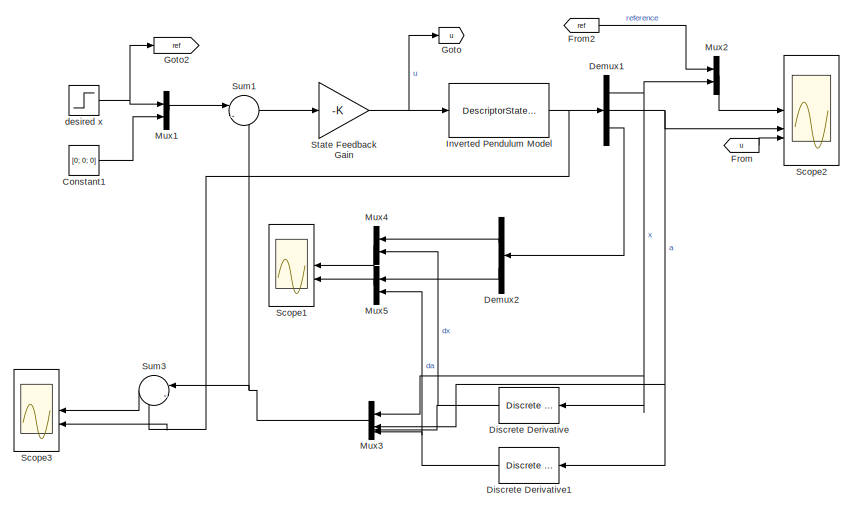
[diagram: root canvas - part 1/4, top left region]
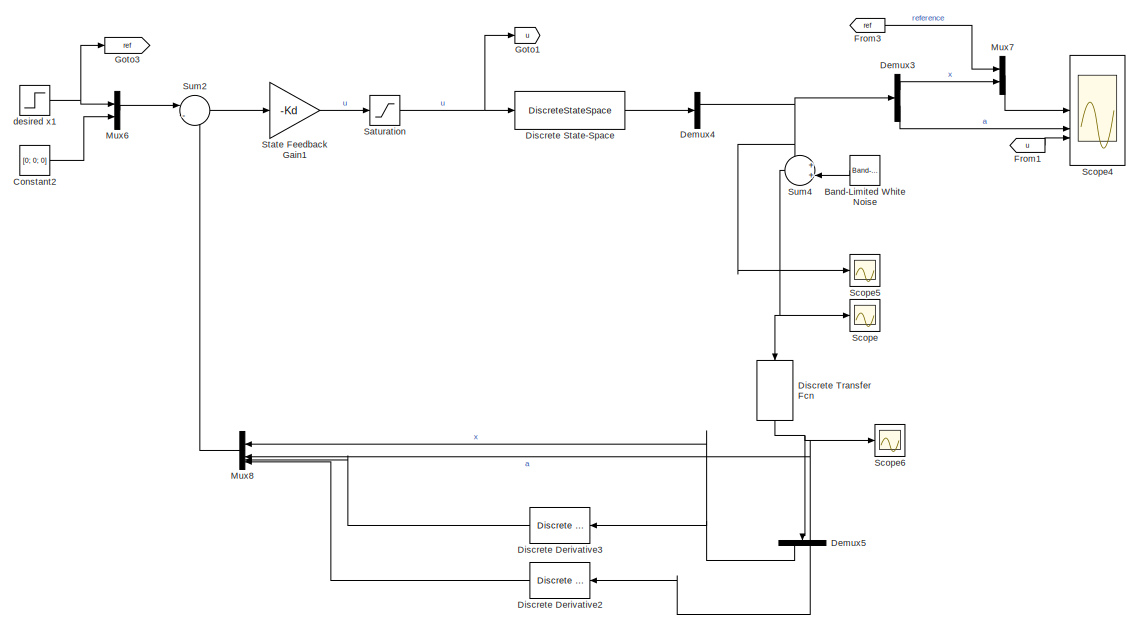
[diagram: root canvas - part 2/4, top center region]
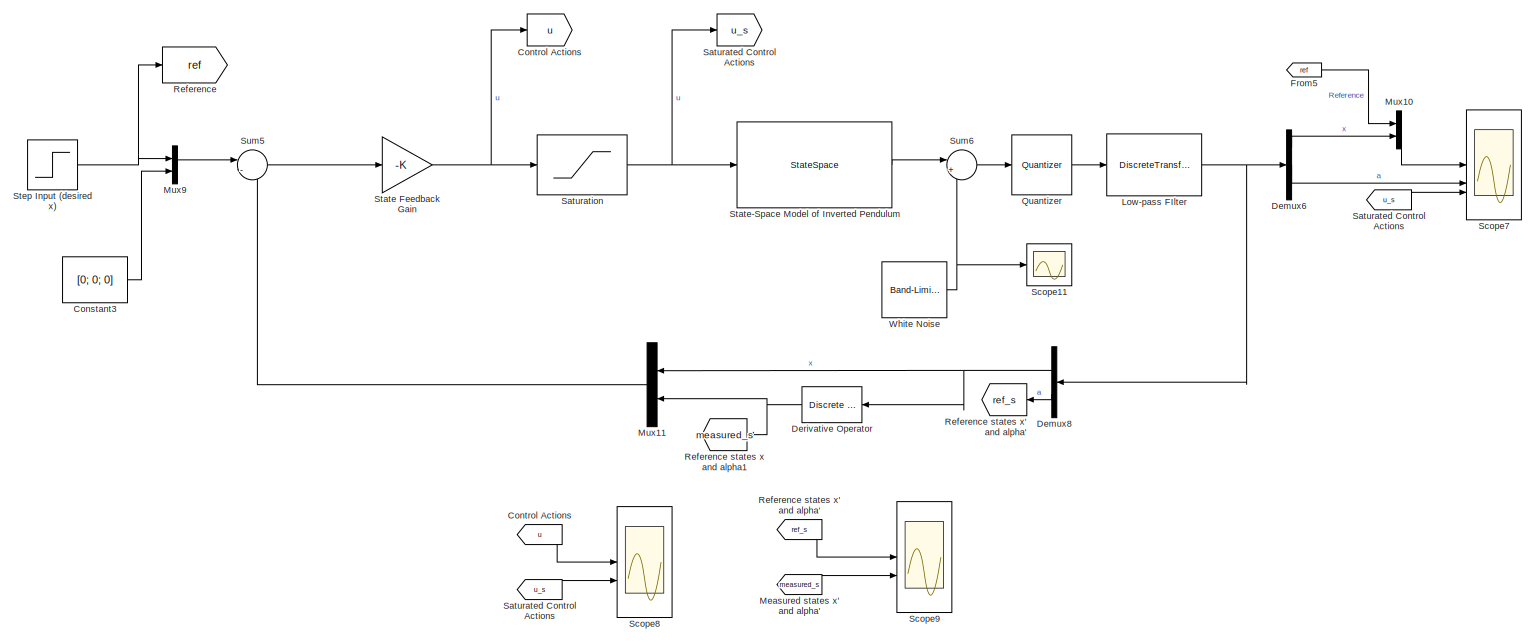
[diagram: root canvas - part 3/4, bottom left region]
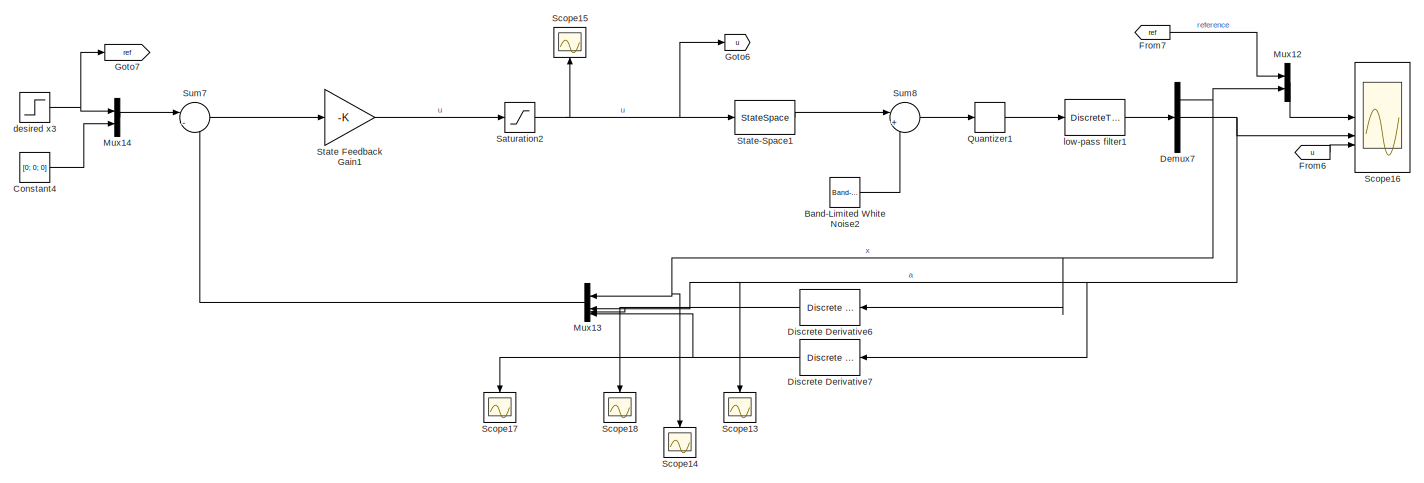
[diagram: root canvas - part 4/4, bottom right region]
MODEL slx_7806a24191a1
KIND model
CONFIG AbsTol = auto
CONFIG EnableMultiTasking = off
CONFIG FixedStep = auto
CONFIG MaxStep = auto
CONFIG MinStep = auto
CONFIG RelTol = 1e-3
CONFIG SampleTimeConstraint = Unconstrained
CONFIG SolverName = VariableStepAuto
CONFIG StartTime = 0.0
CONFIG StopTime = 10
BLOCK [Reference] Band-Limited White Noise  REF=simulink/Sources/Band-Limited
White Noise
  Commented = on
  SourceBlock = simulink/Sources/Band-Limited\nWhite Noise
  SourceType = Band-Limited White Noise.
BLOCK [Reference] Band-Limited White Noise2  REF=simulink/Sources/Band-Limited
White Noise
  Commented = on
  SourceBlock = simulink/Sources/Band-Limited\nWhite Noise
  SourceType = Band-Limited White Noise.
BLOCK [Constant] Constant1
  Commented = on
  Value = [0; 0; 0]
BLOCK [Constant] Constant2
  Commented = on
  Value = [0; 0; 0]
BLOCK [Constant] Constant3
  SampleTime = Ts
  Value = [0; 0; 0]
BLOCK [Constant] Constant4
  Commented = on
  SampleTime = Ts
  Value = [0; 0; 0]
BLOCK [Goto] Control  Actions
  GotoTag = u
BLOCK [From] Control Actions    
  GotoTag = u
BLOCK [Demux] Demux1
  Commented = on
  Outputs = [1 1 2]
BLOCK [Demux] Demux2
  Commented = on
  Outputs = [1 1]
BLOCK [Demux] Demux3
  Commented = on
  Outputs = [1 1]
BLOCK [Demux] Demux4
  Commented = on
  Outputs = [2 2]
BLOCK [Demux] Demux5
  Commented = on
  NameLocation = left
  Outputs = [1 1]
BLOCK [Demux] Demux6
  Outputs = [1 1 2]
BLOCK [Demux] Demux7
  Commented = on
  Outputs = [1 1 2]
BLOCK [Demux] Demux8
  Outputs = [2  -1]
BLOCK [Reference] Derivative Operator  REF=simulink/Discrete/Discrete Derivative
  SourceBlock = simulink/Discrete/Discrete Derivative
  SourceType = Discrete Derivative
BLOCK [Reference] Discrete Derivative  REF=simulink/Discrete/Discrete Derivative
  Commented = on
  SourceBlock = simulink/Discrete/Discrete Derivative
  SourceType = Discrete Derivative
BLOCK [Reference] Discrete Derivative1  REF=simulink/Discrete/Discrete Derivative
  Commented = on
  SourceBlock = simulink/Discrete/Discrete Derivative
  SourceType = Discrete Derivative
BLOCK [Reference] Discrete Derivative2  REF=simulink/Discrete/Discrete Derivative
  Commented = on
  SourceBlock = simulink/Discrete/Discrete Derivative
  SourceType = Discrete Derivative
BLOCK [Reference] Discrete Derivative3  REF=simulink/Discrete/Discrete Derivative
  Commented = on
  SourceBlock = simulink/Discrete/Discrete Derivative
  SourceType = Discrete Derivative
BLOCK [Reference] Discrete Derivative6  REF=simulink/Discrete/Discrete Derivative
  Commented = on
  SourceBlock = simulink/Discrete/Discrete Derivative
  SourceType = Discrete Derivative
BLOCK [Reference] Discrete Derivative7  REF=simulink/Discrete/Discrete Derivative
  Commented = on
  SourceBlock = simulink/Discrete/Discrete Derivative
  SourceType = Discrete Derivative
BLOCK [DiscreteStateSpace] Discrete State-Space
  A = Ad
  B = Bd
  C = Cd
  Commented = on
  D = Dd
  SampleTime = Ts
BLOCK [DiscreteTransferFcn] Discrete Transfer Fcn
  Commented = on
  Denominator = [1+wc*Ts, -1]
  InputPortMap = u0
  NameLocation = left
  Numerator = [wc*Ts]
BLOCK [From] From
  Commented = on
  GotoTag = u
BLOCK [From] From1
  Commented = on
  GotoTag = u
BLOCK [From] From2
  Commented = on
  GotoTag = ref
BLOCK [From] From3
  Commented = on
  GotoTag = ref
BLOCK [From] From5
  GotoTag = ref
BLOCK [From] From6
  Commented = on
  GotoTag = u
BLOCK [From] From7
  Commented = on
  GotoTag = ref
BLOCK [Goto] Goto
  Commented = on
  GotoTag = u
BLOCK [Goto] Goto1
  Commented = on
  GotoTag = u
BLOCK [Goto] Goto2
  Commented = on
  GotoTag = ref
BLOCK [Goto] Goto3
  Commented = on
  GotoTag = ref
BLOCK [Goto] Goto6
  Commented = on
  GotoTag = u
BLOCK [Goto] Goto7
  Commented = on
  GotoTag = ref
BLOCK [DescriptorStateSpace] Inverted Pendulum Model
  A = A
  B = B
  C = Cc
  Commented = on
  D = Dc
  E = eye(4)
BLOCK [DiscreteTransferFcn] Low-pass FIlter  
  Denominator = [1+wc*Ts, -1]
  InputPortMap = u0
  Numerator = [wc*Ts, 0]
BLOCK [From] Measured states x' and alpha' 
  GotoTag = measured_s
BLOCK [Mux] Mux1
  Commented = on
  DisplayOption = bar
  Inputs = 2
BLOCK [Mux] Mux10
  DisplayOption = bar
  Inputs = 2
BLOCK [Mux] Mux11
  DisplayOption = bar
  Inputs = 2
BLOCK [Mux] Mux12
  Commented = on
  DisplayOption = bar
  Inputs = 2
BLOCK [Mux] Mux13
  Commented = on
  DisplayOption = bar
BLOCK [Mux] Mux14
  Commented = on
  DisplayOption = bar
  Inputs = 2
BLOCK [Mux] Mux2
  Commented = on
  DisplayOption = bar
  Inputs = 2
BLOCK [Mux] Mux3
  Commented = on
  DisplayOption = bar
BLOCK [Mux] Mux4
  Commented = on
  DisplayOption = bar
  Inputs = 2
BLOCK [Mux] Mux5
  Commented = on
  DisplayOption = bar
  Inputs = 2
BLOCK [Mux] Mux6
  Commented = on
  DisplayOption = bar
  Inputs = 2
BLOCK [Mux] Mux7
  Commented = on
  DisplayOption = bar
  Inputs = 2
BLOCK [Mux] Mux8
  Commented = on
  DisplayOption = bar
BLOCK [Mux] Mux9
  DisplayOption = bar
  Inputs = 2
BLOCK [Quantizer] Quantizer 
  QuantizationInterval = 20/(2^16)
BLOCK [Quantizer] Quantizer1
  Commented = on
  QuantizationInterval = 20/(2^16)
BLOCK [Goto] Reference
  GotoTag = ref
BLOCK [Goto] Reference states x and alpha1
  GotoTag = measured_s
BLOCK [Goto] Reference states x' and alpha'
  GotoTag = ref_s
BLOCK [From] Reference states x' and alpha'   
  GotoTag = ref_s
BLOCK [Goto] Saturated Control Actions
  GotoTag = u_s
BLOCK [From] Saturated Control Actions   
  GotoTag = u_s
BLOCK [From] Saturated Control Actions    
  GotoTag = u_s
BLOCK [Saturate] Saturation
  Commented = on
  LowerLimit = -5
  UpperLimit = 5
BLOCK [Saturate] Saturation 
  LowerLimit = -5
  UpperLimit = 5
BLOCK [Saturate] Saturation2
  Commented = on
  LowerLimit = -5
  UpperLimit = 5
BLOCK [Scope] Scope
  Commented = on
  Floating = off
  NumInputPorts = 1
  ScopeSpecificationString = Simulink.scopes.TimeScopeBlockCfg('CurrentConfiguration', extmgr.ConfigurationSet(extmgr.Configuration('Core','General UI',true),extmgr.Configuration('Core','Source UI',true),extmgr.Configuration('Sources','WiredSimulink',true,'DataLoggingVariableName','ScopeData2'),extmgr.Configuration('Visuals','Time Domain',true,'SerializedDisplays',{struct('MinYLimReal','-0.02799','MaxYLimReal','0.119','YLabel...<+1396ch>
BLOCK [Scope] Scope1
  Commented = on
  Floating = off
  NumInputPorts = 2
  ScopeSpecificationString = Simulink.scopes.TimeScopeBlockCfg('CurrentConfiguration', extmgr.ConfigurationSet(extmgr.Configuration('Core','General UI',true),extmgr.Configuration('Core','Source UI',true),extmgr.Configuration('Sources','WiredSimulink',true,'DataLogging',true,'DataLoggingSaveFormat','StructureWithTime'),extmgr.Configuration('Visuals','Time Domain',true,'SerializedDisplays',{struct('MinYLimReal','-2036003.42978'...<+3263ch>
BLOCK [Scope] Scope11
  Floating = off
  NumInputPorts = 1
  ScopeSpecificationString = Simulink.scopes.TimeScopeBlockCfg('CurrentConfiguration', extmgr.ConfigurationSet(extmgr.Configuration('Core','General UI',true),extmgr.Configuration('Core','Source UI',true),extmgr.Configuration('Sources','WiredSimulink',true,'DataLoggingVariableName','ScopeData10'),extmgr.Configuration('Visuals','Time Domain',true,'SerializedDisplays',{struct('MinYLimReal','-0.01454','MaxYLimReal','0.01396','YLa...<+1400ch>
BLOCK [Scope] Scope13
  Commented = on
  Floating = off
  NameLocation = left
  NumInputPorts = 1
  ScopeSpecificationString = Simulink.scopes.TimeScopeBlockCfg('CurrentConfiguration', extmgr.ConfigurationSet(extmgr.Configuration('Core','General UI',true),extmgr.Configuration('Core','Source UI',true),extmgr.Configuration('Sources','WiredSimulink',true,'DataLoggingVariableName','ScopeData1'),extmgr.Configuration('Visuals','Time Domain',true,'SerializedDisplays',{struct('MinYLimReal','-0.01545','MaxYLimReal','0.02435','YLab...<+1390ch>
BLOCK [Scope] Scope14
  Commented = on
  Floating = off
  NameLocation = left
  NumInputPorts = 1
  ScopeSpecificationString = Simulink.scopes.TimeScopeBlockCfg('CurrentConfiguration', extmgr.ConfigurationSet(extmgr.Configuration('Core','General UI',true),extmgr.Configuration('Core','Source UI',true),extmgr.Configuration('Sources','WiredSimulink',true,'DataLoggingVariableName','ScopeData2'),extmgr.Configuration('Visuals','Time Domain',true,'SerializedDisplays',{struct('MinYLimReal','-0.02947','MaxYLimReal','0.23816','YLab...<+1389ch>
BLOCK [Scope] Scope15
  Commented = on
  Floating = off
  NameLocation = right
  NumInputPorts = 1
  ScopeSpecificationString = Simulink.scopes.TimeScopeBlockCfg('CurrentConfiguration', extmgr.ConfigurationSet(extmgr.Configuration('Core','General UI',true),extmgr.Configuration('Core','Source UI',true),extmgr.Configuration('Sources','WiredSimulink',true,'DataLoggingVariableName','ScopeData3'),extmgr.Configuration('Visuals','Time Domain',true,'SerializedDisplays',{struct('MinYLimReal','-2.74275','MaxYLimReal','3.18637','YLab...<+1389ch>
BLOCK [Scope] Scope16
  Commented = on
  Floating = off
  NumInputPorts = 3
  ScopeSpecificationString = Simulink.scopes.TimeScopeBlockCfg('CurrentConfiguration', extmgr.ConfigurationSet(extmgr.Configuration('Core','General UI',true),extmgr.Configuration('Core','Source UI',true),extmgr.Configuration('Sources','WiredSimulink',true,'DataLogging',true,'DataLoggingVariableName','ScopeData4','DataLoggingSaveFormat','StructureWithTime'),extmgr.Configuration('Visuals','Time Domain',true,'SerializedDisplays'...<+3246ch>
BLOCK [Scope] Scope17
  Commented = on
  Floating = off
  NameLocation = left
  NumInputPorts = 1
  ScopeSpecificationString = Simulink.scopes.TimeScopeBlockCfg('CurrentConfiguration', extmgr.ConfigurationSet(extmgr.Configuration('Core','General UI',true),extmgr.Configuration('Core','Source UI',true),extmgr.Configuration('Sources','WiredSimulink',true,'DataLoggingVariableName','ScopeData5'),extmgr.Configuration('Visuals','Time Domain',true,'SerializedDisplays',{struct('MinYLimReal','-0.13449','MaxYLimReal','0.16125','YLab...<+1409ch>
BLOCK [Scope] Scope18
  Commented = on
  Floating = off
  NameLocation = left
  NumInputPorts = 1
  ScopeSpecificationString = Simulink.scopes.TimeScopeBlockCfg('CurrentConfiguration', extmgr.ConfigurationSet(extmgr.Configuration('Core','General UI',true),extmgr.Configuration('Core','Source UI',true),extmgr.Configuration('Sources','WiredSimulink',true,'DataLoggingVariableName','ScopeData6'),extmgr.Configuration('Visuals','Time Domain',true,'SerializedDisplays',{struct('MinYLimReal','-0.10777','MaxYLimReal','0.19201','YLab...<+1408ch>
BLOCK [Scope] Scope2
  Commented = on
  Floating = off
  NumInputPorts = 3
  ScopeSpecificationString = Simulink.scopes.TimeScopeBlockCfg('CurrentConfiguration', extmgr.ConfigurationSet(extmgr.Configuration('Core','General UI',true),extmgr.Configuration('Core','Source UI',true),extmgr.Configuration('Sources','WiredSimulink',true,'DataLogging',true,'DataLoggingVariableName','ScopeData2','DataLoggingSaveFormat','StructureWithTime'),extmgr.Configuration('Visuals','Time Domain',true,'SerializedDisplays'...<+3300ch>
BLOCK [Scope] Scope3
  Commented = on
  Floating = off
  NumInputPorts = 2
  ScopeSpecificationString = Simulink.scopes.TimeScopeBlockCfg('CurrentConfiguration', extmgr.ConfigurationSet(extmgr.Configuration('Core','General UI',true),extmgr.Configuration('Core','Source UI',true),extmgr.Configuration('Sources','WiredSimulink',true,'DataLogging',true,'DataLoggingSaveFormat','StructureWithTime','DataLoggingVariableName','ScopeData1'),extmgr.Configuration('Visuals','Time Domain',true,'SerializedDisplays'...<+3536ch>
BLOCK [Scope] Scope4
  Commented = on
  Floating = off
  NumInputPorts = 3
  ScopeSpecificationString = Simulink.scopes.TimeScopeBlockCfg('CurrentConfiguration', extmgr.ConfigurationSet(extmgr.Configuration('Core','General UI',true),extmgr.Configuration('Core','Source UI',true),extmgr.Configuration('Sources','WiredSimulink',true,'DataLogging',true,'DataLoggingVariableName','ScopeData1','DataLoggingSaveFormat','StructureWithTime'),extmgr.Configuration('Visuals','Time Domain',true,'SerializedDisplays'...<+3259ch>
BLOCK [Scope] Scope5
  Commented = on
  Floating = off
  NumInputPorts = 1
  ScopeSpecificationString = Simulink.scopes.TimeScopeBlockCfg('CurrentConfiguration', extmgr.ConfigurationSet(extmgr.Configuration('Core','General UI',true),extmgr.Configuration('Core','Source UI',true),extmgr.Configuration('Sources','WiredSimulink',true,'DataLoggingVariableName','ScopeData3'),extmgr.Configuration('Visuals','Time Domain',true,'SerializedDisplays',{struct('MinYLimReal','-0.02481','MaxYLimReal','0.1156','YLabe...<+1408ch>
BLOCK [Scope] Scope6
  Commented = on
  Floating = off
  NumInputPorts = 1
  ScopeSpecificationString = Simulink.scopes.TimeScopeBlockCfg('CurrentConfiguration', extmgr.ConfigurationSet(extmgr.Configuration('Core','General UI',true),extmgr.Configuration('Core','Source UI',true),extmgr.Configuration('Sources','WiredSimulink',true,'DataLoggingVariableName','ScopeData4'),extmgr.Configuration('Visuals','Time Domain',true,'SerializedDisplays',{struct('MinYLimReal','-0.01952','MaxYLimReal','0.11455','YLab...<+1438ch>
BLOCK [Scope] Scope7
  Floating = off
  NumInputPorts = 3
  ScopeSpecificationString = Simulink.scopes.TimeScopeBlockCfg('CurrentConfiguration', extmgr.ConfigurationSet(extmgr.Configuration('Core','General UI',true,'FigureColor',[1 1 1]),extmgr.Configuration('Core','Source UI',true),extmgr.Configuration('Sources','WiredSimulink',true,'DataLogging',true,'DataLoggingVariableName','ScopeData5','DataLoggingSaveFormat','StructureWithTime'),extmgr.Configuration('Visuals','Time Domain',tru...<+3358ch>
BLOCK [Scope] Scope8
  Floating = off
  NumInputPorts = 2
  ScopeSpecificationString = Simulink.scopes.TimeScopeBlockCfg('CurrentConfiguration', extmgr.ConfigurationSet(extmgr.Configuration('Core','General UI',true,'DisplayFullSourceName',true),extmgr.Configuration('Core','Source UI',true),extmgr.Configuration('Sources','WiredSimulink',true,'DataLogging',true,'DataLoggingVariableName','ScopeData7','DataLoggingSaveFormat','StructureWithTime','SampleTime','Ts'),extmgr.Configuration('V...<+2430ch>
BLOCK [Scope] Scope9
  Floating = off
  NumInputPorts = 2
  ScopeSpecificationString = Simulink.scopes.TimeScopeBlockCfg('CurrentConfiguration', extmgr.ConfigurationSet(extmgr.Configuration('Core','General UI',true,'DisplayFullSourceName',true),extmgr.Configuration('Core','Source UI',true),extmgr.Configuration('Sources','WiredSimulink',true,'DataLogging',true,'DataLoggingVariableName','ScopeData8','DataLoggingSaveFormat','StructureWithTime','SampleTime','Ts'),extmgr.Configuration('V...<+2509ch>
BLOCK [Gain] State Feedback  Gain
  Commented = on
  Gain = -K
  Multiplication = Matrix(K*u)
BLOCK [Gain] State Feedback  Gain1
  Commented = on
  Gain = -Kd
  Multiplication = Matrix(K*u)
BLOCK [Gain] State Feedback Gain
  Gain = -K
  Multiplication = Matrix(K*u)
BLOCK [Gain] State Feedback Gain1
  Commented = on
  Gain = -K
  Multiplication = Matrix(K*u)
BLOCK [StateSpace] State-Space Model of Inverted Pendulum 
  A = A
  B = B
  C = Cc
  D = Dc
  InitialCondition = 0
BLOCK [StateSpace] State-Space1
  A = A
  B = B
  C = Cc
  Commented = on
  D = Dc
  InitialCondition = 0
BLOCK [Step] Step Input (desired x)
  After = x_desired
  SampleTime = Ts
BLOCK [Sum] Sum1
  Commented = on
  Inputs = |-+
BLOCK [Sum] Sum2
  Commented = on
  Inputs = |-+
BLOCK [Sum] Sum3
  Commented = on
  Inputs = |-+
BLOCK [Sum] Sum4
  Commented = on
  Inputs = ++|
  NameLocation = top
BLOCK [Sum] Sum5
  Inputs = |-+
BLOCK [Sum] Sum6
  Inputs = |++
BLOCK [Sum] Sum7
  Commented = on
  Inputs = |-+
BLOCK [Sum] Sum8
  Commented = on
  Inputs = |++
BLOCK [Reference] White Noise  REF=simulink/Sources/Band-Limited
White Noise
  SourceBlock = simulink/Sources/Band-Limited\nWhite Noise
  SourceType = Band-Limited White Noise.
BLOCK [Step] desired x
  After = 0.1
  Commented = on
  SampleTime = 0
BLOCK [Step] desired x1
  After = 0.1
  Commented = on
  SampleTime = 0
BLOCK [Step] desired x3
  After = 0
  Commented = on
  SampleTime = Ts
BLOCK [DiscreteTransferFcn] low-pass filter1
  Commented = on
  Denominator = [1+wc*Ts, -1]
  InputPortMap = u0
  Numerator = [wc*Ts, 0]
LINE Band-Limited White Noise2:1 -> Sum8:2
LINE Band-Limited White Noise:1 -> Sum4:2
LINE Constant1:1 -> Mux1:2
LINE Constant2:1 -> Mux6:2
LINE Constant3:1 -> Mux9:2
LINE Constant4:1 -> Mux14:2
LINE Control Actions    :1 -> Scope8:1
NET Demux1:1 -> Discrete Derivative:1, Mux2:2, Mux3:1
NET Demux1:2 -> Discrete Derivative1:1, Mux3:2, Scope2:2
LINE Demux1:3 -> Demux2:1
LINE Demux2:1 -> Mux4:1
LINE Demux2:2 -> Mux5:1
LINE Demux3:1 -> Mux7:2
LINE Demux3:2 -> Scope4:2
NET Demux4:1 -> Demux3:1, Scope5:1, Sum4:1
NET Demux5:1 -> Discrete Derivative3:1, Mux8:1
NET Demux5:2 -> Discrete Derivative2:1, Mux8:2
LINE Demux6:1 -> Mux10:2
LINE Demux6:2 -> Scope7:2
NET Demux7:1 -> Discrete Derivative6:1, Mux12:2, Mux13:1, Scope14:1
NET Demux7:2 -> Discrete Derivative7:1, Mux13:2, Scope13:1, Scope16:2
NET Demux8:1 -> Derivative Operator:1, Mux11:1
LINE Demux8:2 -> Reference states x' and alpha':1
NET Derivative Operator:1 -> Mux11:2, Reference states x and alpha1:1
NET Discrete Derivative1:1 -> Mux3:4, Mux5:2
LINE Discrete Derivative2:1 -> Mux8:4
LINE Discrete Derivative3:1 -> Mux8:3
NET Discrete Derivative6:1 -> Mux13:3, Scope18:1
NET Discrete Derivative7:1 -> Mux13:4, Scope17:1
NET Discrete Derivative:1 -> Mux3:3, Mux4:2
LINE Discrete State-Space:1 -> Demux4:1
NET Discrete Transfer Fcn:1 -> Demux5:1, Scope6:1
LINE From1:1 -> Scope4:3
LINE From2:1 -> Mux2:1
LINE From3:1 -> Mux7:1
LINE From5:1 -> Mux10:1
LINE From6:1 -> Scope16:3
LINE From7:1 -> Mux12:1
LINE From:1 -> Scope2:3
NET Inverted Pendulum Model:1 -> Demux1:1, Scope3:2, Sum3:2
NET Low-pass FIlter  :1 -> Demux6:1, Demux8:1
LINE Measured states x' and alpha' :1 -> Scope9:2
LINE Mux10:1 -> Scope7:1
LINE Mux11:1 -> Sum5:2
LINE Mux12:1 -> Scope16:1
LINE Mux13:1 -> Sum7:2
LINE Mux14:1 -> Sum7:1
LINE Mux1:1 -> Sum1:1
LINE Mux2:1 -> Scope2:1
NET Mux3:1 -> Sum1:2, Sum3:1
LINE Mux4:1 -> Scope1:1
LINE Mux5:1 -> Scope1:2
LINE Mux6:1 -> Sum2:1
LINE Mux7:1 -> Scope4:1
LINE Mux8:1 -> Sum2:2
LINE Mux9:1 -> Sum5:1
LINE Quantizer :1 -> Low-pass FIlter  :1
LINE Quantizer1:1 -> low-pass filter1:1
LINE Reference states x' and alpha'   :1 -> Scope9:1
LINE Saturated Control Actions    :1 -> Scope8:2
LINE Saturated Control Actions   :1 -> Scope7:3
NET Saturation :1 -> Saturated Control Actions:1, State-Space Model of Inverted Pendulum :1
NET Saturation2:1 -> Goto6:1, Scope15:1, State-Space1:1
NET Saturation:1 -> Discrete State-Space:1, Goto1:1
LINE State Feedback  Gain1:1 -> Saturation:1
NET State Feedback  Gain:1 -> Goto:1, Inverted Pendulum Model:1
LINE State Feedback Gain1:1 -> Saturation2:1
NET State Feedback Gain:1 -> Control  Actions:1, Saturation :1
LINE State-Space Model of Inverted Pendulum :1 -> Sum6:1
LINE State-Space1:1 -> Sum8:1
NET Step Input (desired x):1 -> Mux9:1, Reference:1
LINE Sum1:1 -> State Feedback  Gain:1
LINE Sum2:1 -> State Feedback  Gain1:1
LINE Sum3:1 -> Scope3:1
NET Sum4:1 -> Discrete Transfer Fcn:1, Scope:1
LINE Sum5:1 -> State Feedback Gain:1
LINE Sum6:1 -> Quantizer :1
LINE Sum7:1 -> State Feedback Gain1:1
LINE Sum8:1 -> Quantizer1:1
NET White Noise:1 -> Scope11:1, Sum6:2
NET desired x1:1 -> Goto3:1, Mux6:1
NET desired x3:1 -> Goto7:1, Mux14:1
NET desired x:1 -> Goto2:1, Mux1:1
LINE low-pass filter1:1 -> Demux7:1
note: NET lines group one-source signal fan-out (src -> all destinations, sorted); 1:1 wires keep LINE
